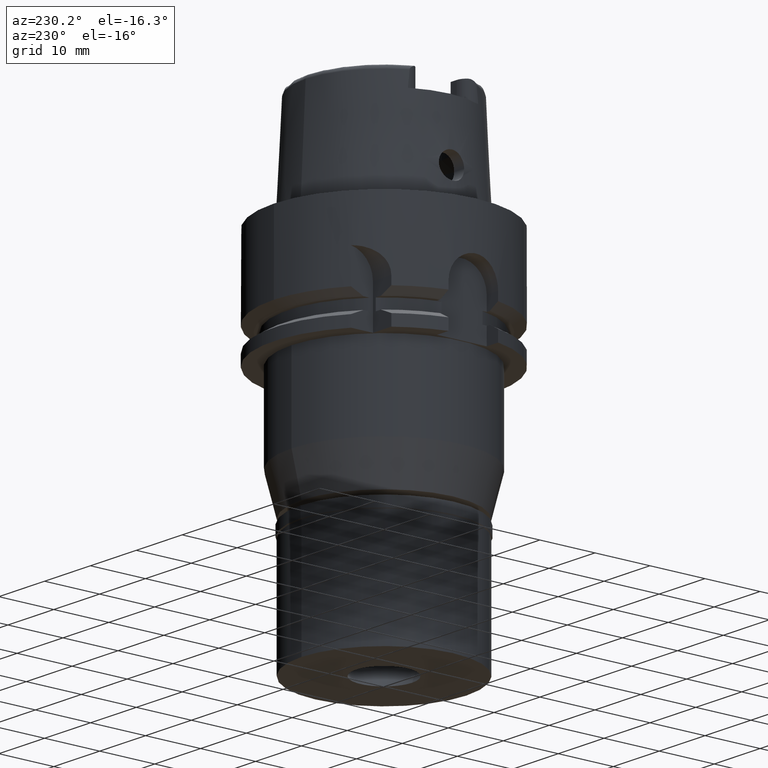
[diagram: clean part render]
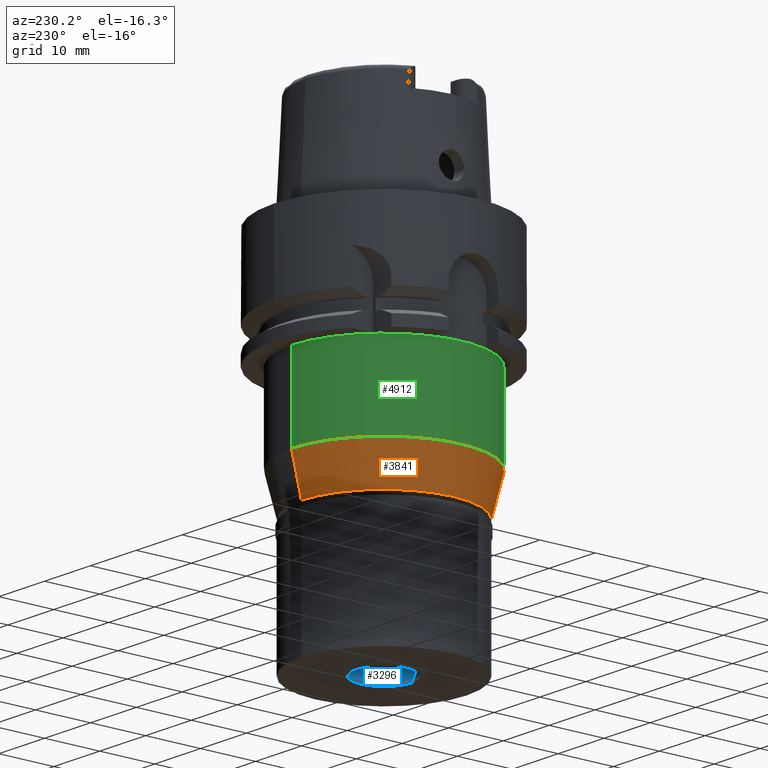
[diagram: same view with three faces highlighted in distinct colors, each labeled with its STEP entity id]
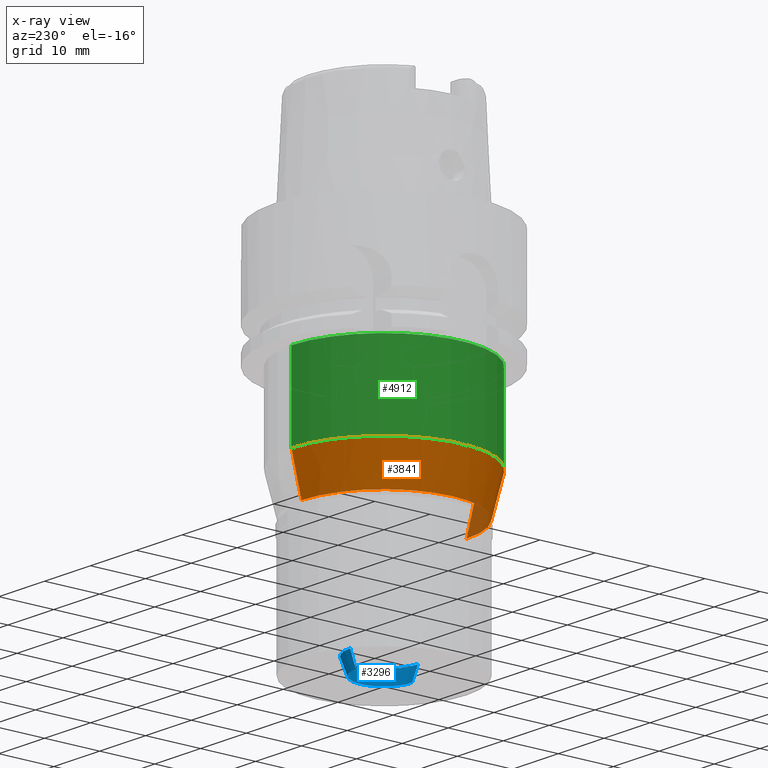
[diagram: x-ray of the same camera — body ghosted, the three highlighted faces saturated]
A machine part, auxiliary view with three faces highlighted in distinct colors.
The next image is the same camera in x-ray (body ghosted, the three faces saturated) — at least one of them is partly hidden behind the body in this view.
Their STEP definitions:

[orange] entity #3841 — the highlighted conical surface has half-angle 14.036 deg.
#16 = CIRCLE ( 'NONE', #3162, 16.80000000000000071 ) ;
#57 = EDGE_CURVE ( 'NONE', #3423, #3196, #16, .T. ) ;
#268 = CARTESIAN_POINT ( 'NONE',  ( 0.0000000000000000000, 16.80000000000000071, -35.00000000000000000 ) ) ;
#488 = DIRECTION ( 'NONE',  ( 0.0000000000000000000, 1.000000000000000000, 0.0000000000000000000 ) ) ;
#513 = CARTESIAN_POINT ( 'NONE',  ( 0.0000000000000000000, 0.0000000000000000000, -38.60000000000000142 ) ) ;
#683 = AXIS2_PLACEMENT_3D ( 'NONE', #4165, #2000, #1153 ) ;
#856 = DIRECTION ( 'NONE',  ( 0.0000000000000000000, 0.0000000000000000000, 1.000000000000000000 ) ) ;
#1054 = CONICAL_SURFACE ( 'NONE', #2895, 15.90000000000000036, 0.2449786631268792425 ) ;
#1109 = CIRCLE ( 'NONE', #683, 15.00000000000000000 ) ;
#1153 = DIRECTION ( 'NONE',  ( 0.0000000000000000000, 1.000000000000000000, 0.0000000000000000000 ) ) ;
#1419 = EDGE_CURVE ( 'NONE', #5247, #4443, #1109, .T. ) ;
#1823 = EDGE_CURVE ( 'NONE', #3196, #4443, #5051, .T. ) ;
#2000 = DIRECTION ( 'NONE',  ( 0.0000000000000000000, 0.0000000000000000000, 1.000000000000000000 ) ) ;
#2471 = ORIENTED_EDGE ( 'NONE', *, *, #1823, .F. ) ;
#2515 = CARTESIAN_POINT ( 'NONE',  ( 0.0000000000000000000, -16.80000000000000071, -35.00000000000000000 ) ) ;
#2553 = DIRECTION ( 'NONE',  ( 0.0000000000000000000, 1.000000000000000000, 0.0000000000000000000 ) ) ;
#2597 = FACE_OUTER_BOUND ( 'NONE', #4005, .T. ) ;
#2850 = ORIENTED_EDGE ( 'NONE', *, *, #57, .F. ) ;
#2895 = AXIS2_PLACEMENT_3D ( 'NONE', #513, #4285, #488 ) ;
#3162 = AXIS2_PLACEMENT_3D ( 'NONE', #4621, #856, #2553 ) ;
#3196 = VERTEX_POINT ( 'NONE', #4269 ) ;
#3207 = CARTESIAN_POINT ( 'NONE',  ( 0.0000000000000000000, -15.00000000000000000, -42.20000000000000284 ) ) ;
#3409 = VECTOR ( 'NONE', #4202, 1000.000000000000227 ) ;
#3423 = VERTEX_POINT ( 'NONE', #268 ) ;
#3841 = ADVANCED_FACE ( 'NONE', ( #2597 ), #1054, .T. ) ;
#4005 = EDGE_LOOP ( 'NONE', ( #4346, #2471, #2850, #5347 ) ) ;
#4127 = VECTOR ( 'NONE', #4430, 1000.000000000000227 ) ;
#4165 = CARTESIAN_POINT ( 'NONE',  ( 0.0000000000000000000, 0.0000000000000000000, -42.20000000000000284 ) ) ;
#4202 = DIRECTION ( 'NONE',  ( 0.0000000000000000000, 0.2425356250364035515, -0.9701425001453142238 ) ) ;
#4269 = CARTESIAN_POINT ( 'NONE',  ( 0.0000000000000000000, -16.80000000000000071, -35.00000000000000000 ) ) ;
#4285 = DIRECTION ( 'NONE',  ( 0.0000000000000000000, 0.0000000000000000000, 1.000000000000000000 ) ) ;
#4346 = ORIENTED_EDGE ( 'NONE', *, *, #1419, .T. ) ;
#4430 = DIRECTION ( 'NONE',  ( 0.0000000000000000000, -0.2425356250364035515, -0.9701425001453142238 ) ) ;
#4443 = VERTEX_POINT ( 'NONE', #3207 ) ;
#4455 = EDGE_CURVE ( 'NONE', #3423, #5247, #5289, .T. ) ;
#4621 = CARTESIAN_POINT ( 'NONE',  ( 0.0000000000000000000, 0.0000000000000000000, -35.00000000000000000 ) ) ;
#4981 = CARTESIAN_POINT ( 'NONE',  ( 0.0000000000000000000, 16.80000000000000071, -35.00000000000000000 ) ) ;
#5051 = LINE ( 'NONE', #2515, #3409 ) ;
#5221 = CARTESIAN_POINT ( 'NONE',  ( 0.0000000000000000000, 15.00000000000000000, -42.20000000000000284 ) ) ;
#5247 = VERTEX_POINT ( 'NONE', #5221 ) ;
#5289 = LINE ( 'NONE', #4981, #4127 ) ;
#5347 = ORIENTED_EDGE ( 'NONE', *, *, #4455, .T. ) ;

[blue] entity #3296 — the highlighted conical surface has half-angle 20 deg.
#143 = LINE ( 'NONE', #1989, #2555 ) ;
#218 = FACE_OUTER_BOUND ( 'NONE', #2362, .T. ) ;
#296 = DIRECTION ( 'NONE',  ( 0.0000000000000000000, 0.0000000000000000000, -1.000000000000000000 ) ) ;
#389 = ORIENTED_EDGE ( 'NONE', *, *, #4814, .T. ) ;
#911 = CARTESIAN_POINT ( 'NONE',  ( 0.0000000000000000000, -5.100000000001000622, -22.00000000000000000 ) ) ;
#1107 = ORIENTED_EDGE ( 'NONE', *, *, #1930, .F. ) ;
#1144 = DIRECTION ( 'NONE',  ( 0.0000000000000000000, -0.3420201433254905776, 0.9396926207859731539 ) ) ;
#1165 = DIRECTION ( 'NONE',  ( 0.0000000000000000000, 1.000000000000000000, 0.0000000000000000000 ) ) ;
#1796 = CARTESIAN_POINT ( 'NONE',  ( 0.0000000000000000000, 5.100000000001000622, -22.00000000000000000 ) ) ;
#1861 = AXIS2_PLACEMENT_3D ( 'NONE', #3564, #2821, #4423 ) ;
#1930 = EDGE_CURVE ( 'NONE', #4469, #4734, #4903, .T. ) ;
#1989 = CARTESIAN_POINT ( 'NONE',  ( 0.0000000000000000000, -5.100000000001000622, -22.00000000000000000 ) ) ;
#2009 = CARTESIAN_POINT ( 'NONE',  ( 0.0000000000000000000, 0.0000000000000000000, -22.00000000000000000 ) ) ;
#2197 = CARTESIAN_POINT ( 'NONE',  ( 0.0000000000000000000, 5.100000000001000622, -22.00000000000000000 ) ) ;
#2362 = EDGE_LOOP ( 'NONE', ( #2917, #389, #1107, #5252 ) ) ;
#2555 = VECTOR ( 'NONE', #1144, 1000.000000000000227 ) ;
#2681 = DIRECTION ( 'NONE',  ( 0.0000000000000000000, 0.3420201433254905776, 0.9396926207859731539 ) ) ;
#2801 = CARTESIAN_POINT ( 'NONE',  ( 0.0000000000000000000, 6.150000000001000444, -19.11514870957000056 ) ) ;
#2821 = DIRECTION ( 'NONE',  ( 0.0000000000000000000, 0.0000000000000000000, 1.000000000000000000 ) ) ;
#2917 = ORIENTED_EDGE ( 'NONE', *, *, #3532, .T. ) ;
#3035 = LINE ( 'NONE', #1796, #3528 ) ;
#3296 = ADVANCED_FACE ( 'NONE', ( #218 ), #4227, .F. ) ;
#3528 = VECTOR ( 'NONE', #2681, 1000.000000000000227 ) ;
#3532 = EDGE_CURVE ( 'NONE', #3849, #5404, #3865, .T. ) ;
#3556 = CARTESIAN_POINT ( 'NONE',  ( 0.0000000000000000000, 0.0000000000000000000, -19.11514870957000056 ) ) ;
#3564 = CARTESIAN_POINT ( 'NONE',  ( 0.0000000000000000000, 0.0000000000000000000, -20.55757435479000250 ) ) ;
#3849 = VERTEX_POINT ( 'NONE', #2197 ) ;
#3865 = CIRCLE ( 'NONE', #4395, 5.100000000001000622 ) ;
#4227 = CONICAL_SURFACE ( 'NONE', #1861, 5.625000000002000178, 0.3490658503987996708 ) ;
#4395 = AXIS2_PLACEMENT_3D ( 'NONE', #2009, #296, #1165 ) ;
#4423 = DIRECTION ( 'NONE',  ( 0.0000000000000000000, 1.000000000000000000, 0.0000000000000000000 ) ) ;
#4469 = VERTEX_POINT ( 'NONE', #2801 ) ;
#4734 = VERTEX_POINT ( 'NONE', #5203 ) ;
#4814 = EDGE_CURVE ( 'NONE', #5404, #4734, #143, .T. ) ;
#4831 = DIRECTION ( 'NONE',  ( 0.0000000000000000000, 0.0000000000000000000, -1.000000000000000000 ) ) ;
#4903 = CIRCLE ( 'NONE', #5075, 6.150000000002000533 ) ;
#5075 = AXIS2_PLACEMENT_3D ( 'NONE', #3556, #4831, #5189 ) ;
#5153 = EDGE_CURVE ( 'NONE', #3849, #4469, #3035, .T. ) ;
#5189 = DIRECTION ( 'NONE',  ( 0.0000000000000000000, 1.000000000000000000, 0.0000000000000000000 ) ) ;
#5203 = CARTESIAN_POINT ( 'NONE',  ( 0.0000000000000000000, -6.150000000002000533, -19.11514870957000056 ) ) ;
#5252 = ORIENTED_EDGE ( 'NONE', *, *, #5153, .F. ) ;
#5404 = VERTEX_POINT ( 'NONE', #911 ) ;

[green] entity #4912 — the highlighted cylindrical surface (partial cylindrical patch) has radius 16.8 mm, axis along (0, 0, 1).
#16 = CIRCLE ( 'NONE', #3162, 16.80000000000000071 ) ;
#57 = EDGE_CURVE ( 'NONE', #3423, #3196, #16, .T. ) ;
#242 = ORIENTED_EDGE ( 'NONE', *, *, #2004, .T. ) ;
#268 = CARTESIAN_POINT ( 'NONE',  ( 0.0000000000000000000, 16.80000000000000071, -35.00000000000000000 ) ) ;
#360 = DIRECTION ( 'NONE',  ( 0.0000000000000000000, 1.000000000000000000, 0.0000000000000000000 ) ) ;
#377 = DIRECTION ( 'NONE',  ( 0.0000000000000000000, -1.000000000000000000, 0.0000000000000000000 ) ) ;
#391 = EDGE_LOOP ( 'NONE', ( #1988, #3239, #242, #4442 ) ) ;
#631 = VERTEX_POINT ( 'NONE', #4268 ) ;
#853 = DIRECTION ( 'NONE',  ( 0.0000000000000000000, 0.0000000000000000000, -1.000000000000000000 ) ) ;
#856 = DIRECTION ( 'NONE',  ( 0.0000000000000000000, 0.0000000000000000000, 1.000000000000000000 ) ) ;
#1282 = LINE ( 'NONE', #2875, #2453 ) ;
#1586 = CARTESIAN_POINT ( 'NONE',  ( 0.0000000000000000000, 0.0000000000000000000, -20.00000000000000000 ) ) ;
#1822 = VERTEX_POINT ( 'NONE', #3397 ) ;
#1837 = CIRCLE ( 'NONE', #4548, 16.80000000000000071 ) ;
#1872 = EDGE_CURVE ( 'NONE', #631, #3423, #2089, .T. ) ;
#1988 = ORIENTED_EDGE ( 'NONE', *, *, #57, .T. ) ;
#2004 = EDGE_CURVE ( 'NONE', #1822, #631, #1837, .T. ) ;
#2089 = LINE ( 'NONE', #2199, #4207 ) ;
#2199 = CARTESIAN_POINT ( 'NONE',  ( 0.0000000000000000000, 16.80000000000000071, -20.00000000000000000 ) ) ;
#2453 = VECTOR ( 'NONE', #853, 1000.000000000000000 ) ;
#2553 = DIRECTION ( 'NONE',  ( 0.0000000000000000000, 1.000000000000000000, 0.0000000000000000000 ) ) ;
#2782 = DIRECTION ( 'NONE',  ( 0.0000000000000000000, 0.0000000000000000000, -1.000000000000000000 ) ) ;
#2875 = CARTESIAN_POINT ( 'NONE',  ( 0.0000000000000000000, -16.80000000000000071, -20.00000000000000000 ) ) ;
#3040 = EDGE_CURVE ( 'NONE', #1822, #3196, #1282, .T. ) ;
#3162 = AXIS2_PLACEMENT_3D ( 'NONE', #4621, #856, #2553 ) ;
#3196 = VERTEX_POINT ( 'NONE', #4269 ) ;
#3239 = ORIENTED_EDGE ( 'NONE', *, *, #3040, .F. ) ;
#3397 = CARTESIAN_POINT ( 'NONE',  ( 0.0000000000000000000, -16.80000000000000071, -20.00000000000000000 ) ) ;
#3423 = VERTEX_POINT ( 'NONE', #268 ) ;
#3646 = DIRECTION ( 'NONE',  ( 0.0000000000000000000, 0.0000000000000000000, 1.000000000000000000 ) ) ;
#3812 = DIRECTION ( 'NONE',  ( 0.0000000000000000000, 0.0000000000000000000, -1.000000000000000000 ) ) ;
#4119 = CARTESIAN_POINT ( 'NONE',  ( 0.0000000000000000000, 0.0000000000000000000, -62.21499999999999631 ) ) ;
#4207 = VECTOR ( 'NONE', #3812, 1000.000000000000000 ) ;
#4268 = CARTESIAN_POINT ( 'NONE',  ( 0.0000000000000000000, 16.80000000000000071, -20.00000000000000000 ) ) ;
#4269 = CARTESIAN_POINT ( 'NONE',  ( 0.0000000000000000000, -16.80000000000000071, -35.00000000000000000 ) ) ;
#4442 = ORIENTED_EDGE ( 'NONE', *, *, #1872, .T. ) ;
#4548 = AXIS2_PLACEMENT_3D ( 'NONE', #1586, #2782, #377 ) ;
#4621 = CARTESIAN_POINT ( 'NONE',  ( 0.0000000000000000000, 0.0000000000000000000, -35.00000000000000000 ) ) ;
#4892 = FACE_OUTER_BOUND ( 'NONE', #391, .T. ) ;
#4912 = ADVANCED_FACE ( 'NONE', ( #4892 ), #5307, .T. ) ;
#5022 = AXIS2_PLACEMENT_3D ( 'NONE', #4119, #3646, #360 ) ;
#5307 = CYLINDRICAL_SURFACE ( 'NONE', #5022, 16.80000000000000071 ) ;